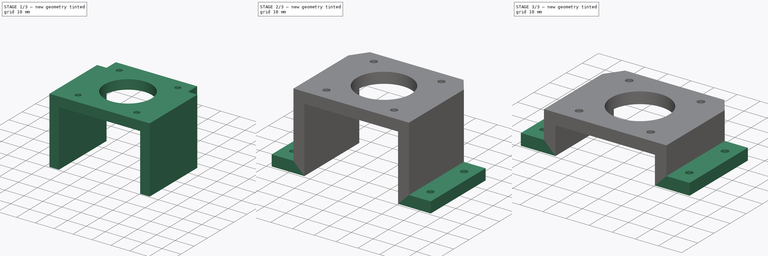
[diagram: build sequence overview — one tinted view per stage of 3, left to right]
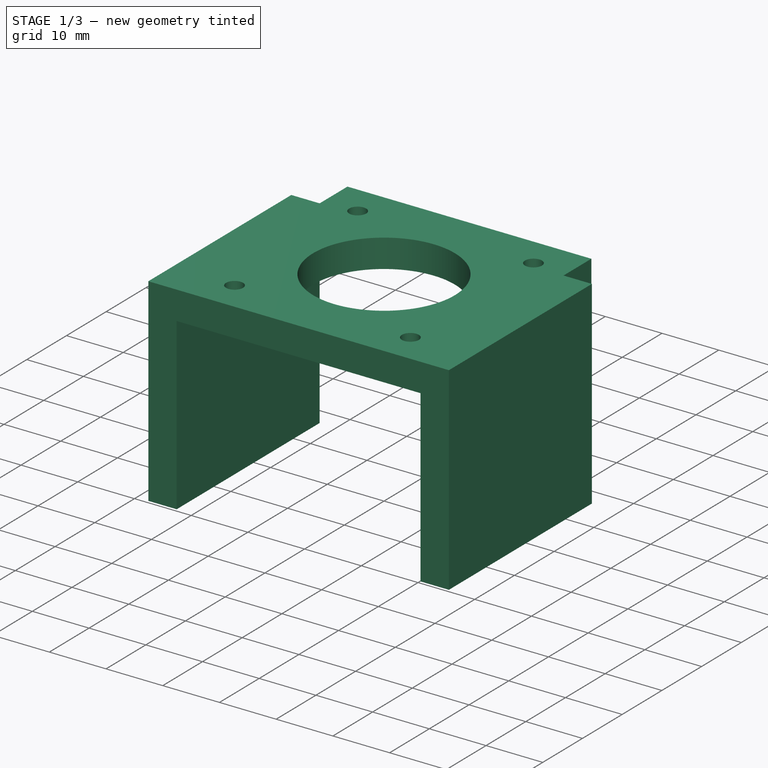
[diagram: stage 1 of 3 — iso view after this stage's code; geometry added in this stage tinted green]
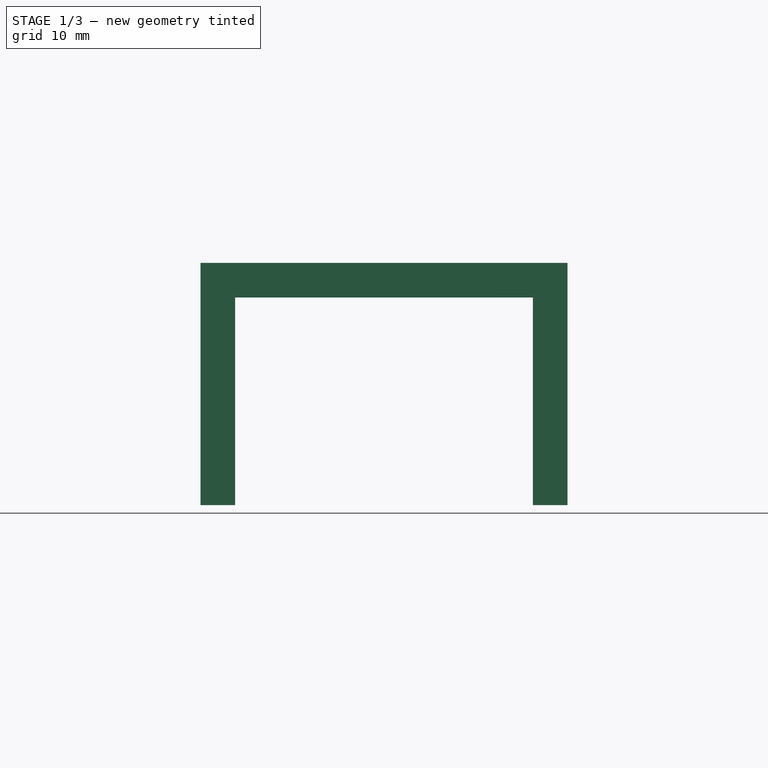
[diagram: stage 1 of 3 — front view after this stage's code; geometry added in this stage tinted green]
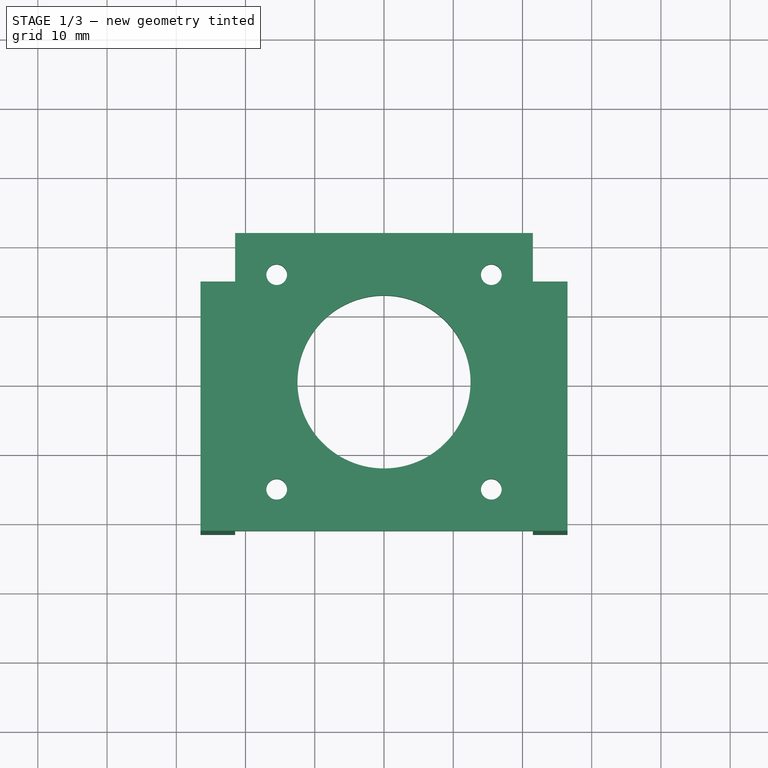
[diagram: stage 1 of 3 — top view after this stage's code; geometry added in this stage tinted green]
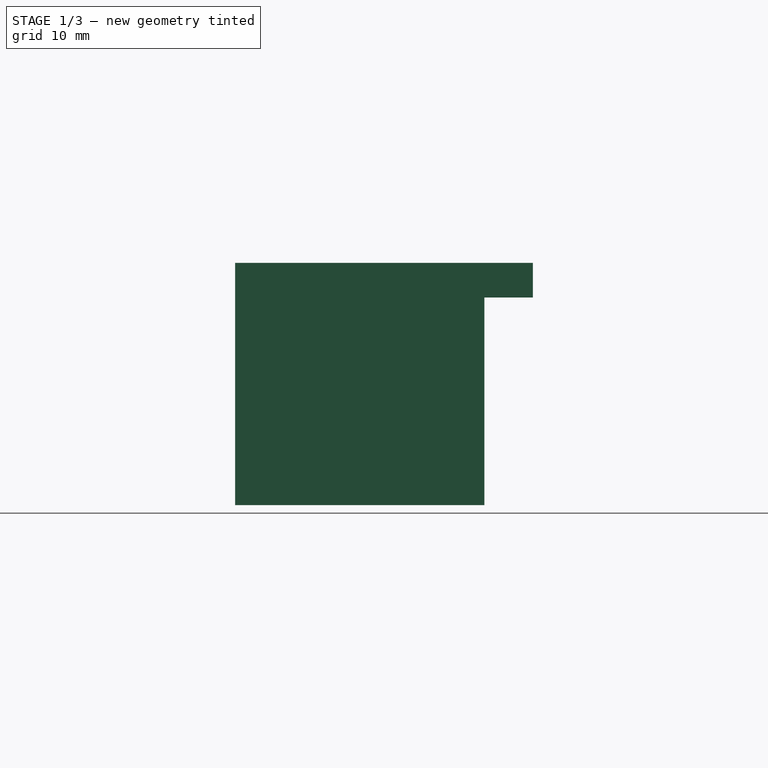
[diagram: stage 1 of 3 — right view after this stage's code; geometry added in this stage tinted green]
FCSTD DOCUMENT  (FreeCAD 1.0R39109 (Git))
Label: lock_bass_motor
License: All rights reserved
LicenseURL: https://en.wikipedia.org/wiki/All_rights_reserved
objects: PartDesign::Pad×4, Sketcher::SketchObject×3, PartDesign::Chamfer×1, PartDesign::Fillet×1, PartDesign::Pocket×1, PartDesign::Body×1
note: 28 computed .brp shape members not serialized (recipe doc carries the construction recipe); baked Part::Feature solids carry a one-line shape summary decoded from their .brp

FEATURE [Sketcher::SketchObject] Sketch
  ArcFitTolerance = 1e-06
  AttachmentSupport = -> [XY_Plane]
  FullyConstrained = true
  MakeInternals = false
  MapMode = 5
  sketch-geometry (13):
    g0: LineSegment StartX=-21.5 StartY=21.5 StartZ=0 EndX=-21.5 EndY=-21.5 EndZ=0
    g1: LineSegment StartX=-21.5 StartY=-21.5 StartZ=0 EndX=21.5 EndY=-21.5 EndZ=0
    g2: LineSegment StartX=21.5 StartY=-21.5 StartZ=0 EndX=21.5 EndY=21.5 EndZ=0
    g3: LineSegment StartX=21.5 StartY=21.5 StartZ=0 EndX=-21.5 EndY=21.5 EndZ=0
    g4: Circle CenterX=0 CenterY=0 CenterZ=0 NormalX=0 NormalY=0 NormalZ=1 AngleXU=0 Radius=12.5
    g5: LineSegment [constr] StartX=-15.5 StartY=15.5 StartZ=0 EndX=-15.5 EndY=-15.5 EndZ=0
    g6: LineSegment [constr] StartX=-15.5 StartY=-15.5 StartZ=0 EndX=15.5 EndY=-15.5 EndZ=0
    g7: LineSegment [constr] StartX=15.5 StartY=-15.5 StartZ=0 EndX=15.5 EndY=15.5 EndZ=0
    g8: LineSegment [constr] StartX=15.5 StartY=15.5 StartZ=0 EndX=-15.5 EndY=15.5 EndZ=0
    g9: Circle CenterX=-15.5 CenterY=15.5 CenterZ=0 NormalX=0 NormalY=0 NormalZ=1 AngleXU=0 Radius=1.5
    g10: Circle CenterX=15.5 CenterY=15.5 CenterZ=0 NormalX=0 NormalY=0 NormalZ=1 AngleXU=0 Radius=1.5
    g11: Circle CenterX=15.5 CenterY=-15.5 CenterZ=0 NormalX=0 NormalY=0 NormalZ=1 AngleXU=0 Radius=1.5
    g12: Circle CenterX=-15.5 CenterY=-15.5 CenterZ=0 NormalX=0 NormalY=0 NormalZ=1 AngleXU=0 Radius=1.5
  constraints (32):
    c: Coincident(g0,g1)
    c: Coincident(g1,g2)
    c: Coincident(g2,g3)
    c: Coincident(g3,g0)
    c: Vertical(g0)
    c: Vertical(g2)
    c: Horizontal(g1)
    c: Horizontal(g3)
    c: Coincident(g4,g-1)
    c: DistanceX(g1,g1) = 43
    c: Equal(g1,g2)
    c: DistanceX(g-1,g1) = 21.5
    c: DistanceY(g1,g-1) = 21.5
    c: Diameter(g4) = 25
    c: Coincident(g5,g6)
    c: Coincident(g6,g7)
    c: Coincident(g7,g8)
    c: Coincident(g8,g5)
    c: Vertical(g5)
    c: Horizontal(g8)
    c: Equal(g6,g7)
    c: Coincident(g9,g5)
    c: Coincident(g10,g7)
    c: Coincident(g11,g6)
    c: Coincident(g12,g5)
    c: Equal(g9,g10)
    c: Equal(g10,g11)
    c: Equal(g11,g12)
    c: Diameter(g9) = 3
    c: DistanceX(g8,g8) = 31
    c: Symmetric(g6,g7,g-1)
    c: Symmetric(g6,g5,g-2)
FEATURE [PartDesign::Pad] Pad
  Direction = (0,0,1)
  Length = 5
  Length2 = 10
  Profile = -> Sketch
  ReferenceAxis = -> Sketch [N_Axis]
  Refine = true
  Suppressed = false
  Type = 0
FEATURE [Sketcher::SketchObject] Sketch001
  ArcFitTolerance = 1e-06
  AttachmentSupport = -> [Pad]
  FullyConstrained = true
  MakeInternals = false
  MapMode = 5
  Placement = pos=(0,0,0) rot=(1,0,0;3.14159rad)
  sketch-geometry (8):
    g0: LineSegment StartX=21.5 StartY=21.5 StartZ=0 EndX=21.5 EndY=-14.5 EndZ=0
    g1: LineSegment StartX=21.5 StartY=-14.5 StartZ=0 EndX=26.5 EndY=-14.5 EndZ=0
    g2: LineSegment StartX=26.5 StartY=-14.5 StartZ=0 EndX=26.5 EndY=21.5 EndZ=0
    g3: LineSegment StartX=26.5 StartY=21.5 StartZ=0 EndX=21.5 EndY=21.5 EndZ=0
    g4: LineSegment StartX=-21.5 StartY=-14.5 StartZ=0 EndX=-21.5 EndY=21.5 EndZ=0
    g5: LineSegment StartX=-21.5 StartY=21.5 StartZ=0 EndX=-26.5 EndY=21.5 EndZ=0
    g6: LineSegment StartX=-26.5 StartY=21.5 StartZ=0 EndX=-26.5 EndY=-14.5 EndZ=0
    g7: LineSegment StartX=-26.5 StartY=-14.5 StartZ=0 EndX=-21.5 EndY=-14.5 EndZ=0
  constraints (24):
    c: Coincident(g0,g1)
    c: Coincident(g1,g2)
    c: Coincident(g2,g3)
    c: Coincident(g3,g0)
    c: Vertical(g0)
    c: Vertical(g2)
    c: Horizontal(g1)
    c: Horizontal(g3)
    c: Coincident(g4,g5)
    c: Coincident(g5,g6)
    c: Coincident(g6,g7)
    c: Coincident(g7,g4)
    c: Vertical(g4)
    c: Vertical(g6)
    c: Horizontal(g5)
    c: Horizontal(g7)
    c: Equal(g5,g3)
    c: Equal(g0,g4)
    c: DistanceY(g-1,g4) = 21.5
    c: DistanceX(g5,g5) = 5
    c: DistanceX(g4,g-1) = 21.5
    c: DistanceX(g-1,g0) = 21.5
    c: DistanceY(g-1,g0) = 21.5
    c: DistanceY(g0,g0) = 36
FEATURE [PartDesign::Pad] Pad001
  BaseFeature = -> Pad
  Direction = (0,0,-1)
  Length = 30
  Length2 = 5
  Profile = -> Sketch001
  ReferenceAxis = -> Sketch001 [N_Axis]
  Refine = true
  Suppressed = false
  Type = 4
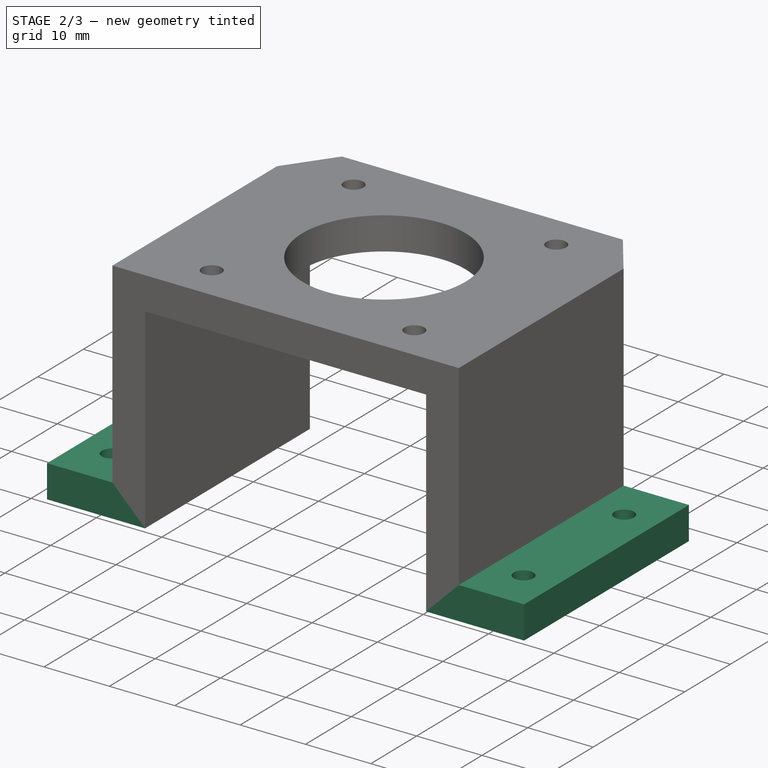
[diagram: stage 2 of 3 — iso view after this stage's code; geometry added in this stage tinted green]
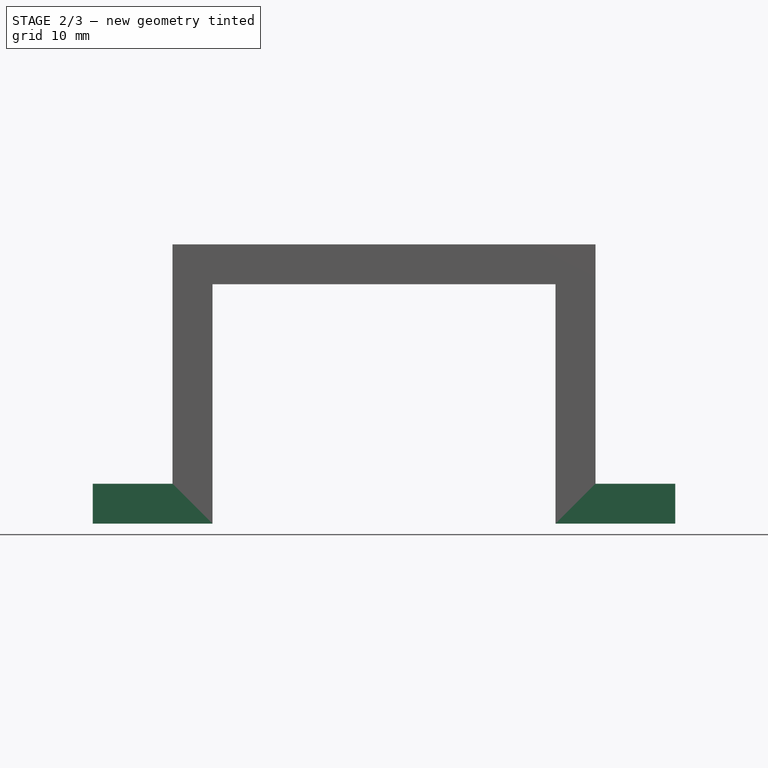
[diagram: stage 2 of 3 — front view after this stage's code; geometry added in this stage tinted green]
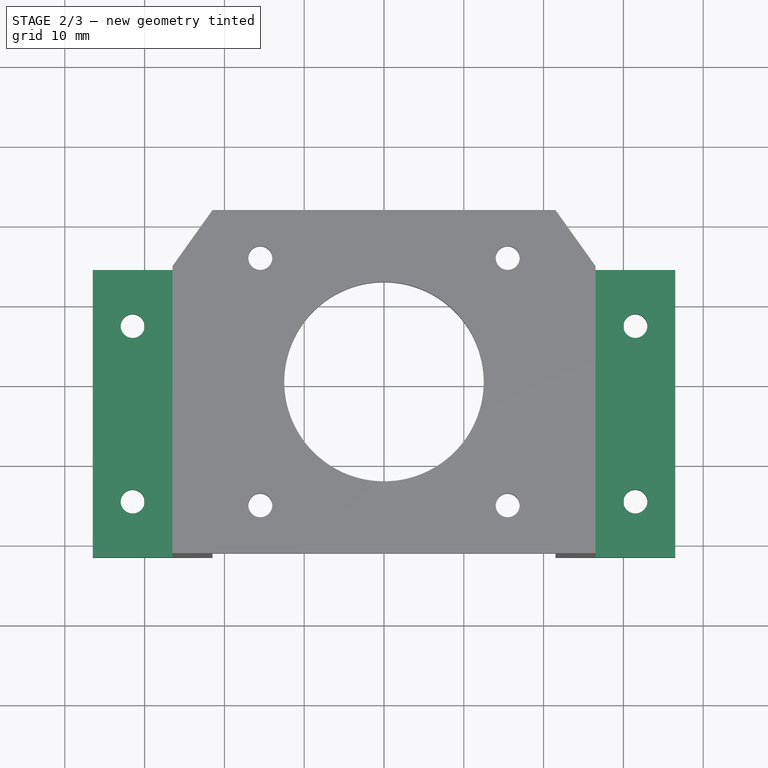
[diagram: stage 2 of 3 — top view after this stage's code; geometry added in this stage tinted green]
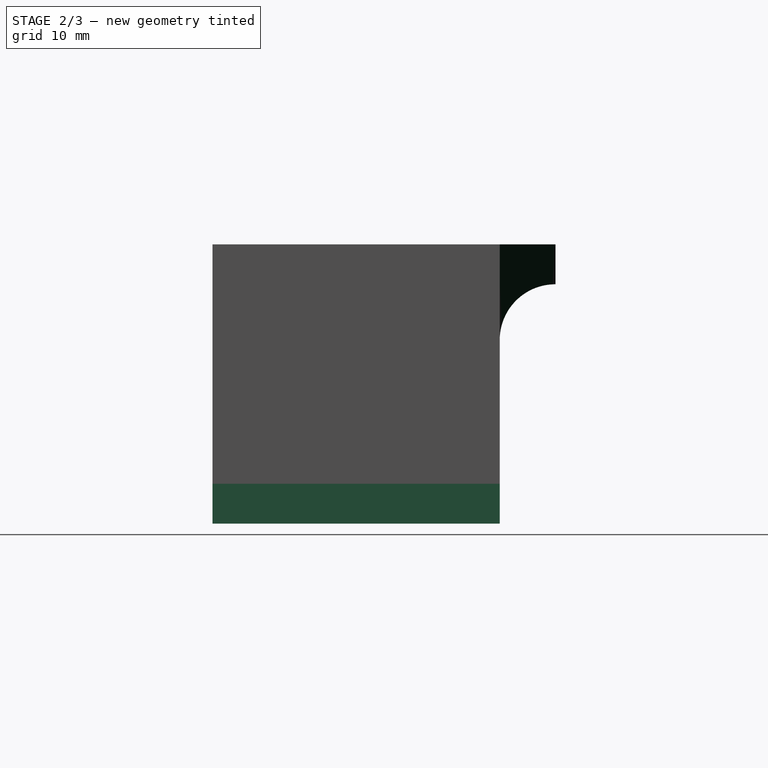
[diagram: stage 2 of 3 — right view after this stage's code; geometry added in this stage tinted green]
FEATURE [Sketcher::SketchObject] Sketch002
  ArcFitTolerance = 1e-06
  AttachmentSupport = -> [Pad001]
  FullyConstrained = true
  MakeInternals = false
  MapMode = 5
  Placement = pos=(0,0,-30) rot=(1,0,0;3.14159rad)
  sketch-geometry (12):
    g0: LineSegment StartX=-36.5 StartY=21.5 StartZ=0 EndX=-36.5 EndY=-14.5 EndZ=0
    g1: LineSegment StartX=-36.5 StartY=-14.5 StartZ=0 EndX=-21.5 EndY=-14.5 EndZ=0
    g2: LineSegment StartX=-21.5 StartY=-14.5 StartZ=0 EndX=-21.5 EndY=21.5 EndZ=0
    g3: LineSegment StartX=-21.5 StartY=21.5 StartZ=0 EndX=-36.5 EndY=21.5 EndZ=0
    g4: LineSegment StartX=21.5 StartY=21.5 StartZ=0 EndX=21.5 EndY=-14.5 EndZ=0
    g5: LineSegment StartX=21.5 StartY=-14.5 StartZ=0 EndX=36.5 EndY=-14.5 EndZ=0
    g6: LineSegment StartX=36.5 StartY=-14.5 StartZ=0 EndX=36.5 EndY=21.5 EndZ=0
    g7: LineSegment StartX=36.5 StartY=21.5 StartZ=0 EndX=21.5 EndY=21.5 EndZ=0
    g8: Circle CenterX=-31.5 CenterY=14.5 CenterZ=0 NormalX=0 NormalY=0 NormalZ=1 AngleXU=0 Radius=1.5
    g9: Circle CenterX=-31.5 CenterY=-7.5 CenterZ=0 NormalX=0 NormalY=0 NormalZ=1 AngleXU=0 Radius=1.5
    g10: Circle CenterX=31.5 CenterY=14.5 CenterZ=0 NormalX=0 NormalY=0 NormalZ=1 AngleXU=0 Radius=1.5
    g11: Circle CenterX=31.5 CenterY=-7.5 CenterZ=0 NormalX=0 NormalY=0 NormalZ=1 AngleXU=0 Radius=1.5
  constraints (36):
    c: Coincident(g0,g1)
    c: Coincident(g1,g2)
    c: Coincident(g2,g3)
    c: Coincident(g3,g0)
    c: Vertical(g0)
    c: Vertical(g2)
    c: Horizontal(g1)
    c: Horizontal(g3)
    c: Coincident(g4,g5)
    c: Coincident(g5,g6)
    c: Coincident(g6,g7)
    c: Coincident(g7,g4)
    c: Vertical(g4)
    c: Vertical(g6)
    c: Horizontal(g5)
    c: Horizontal(g7)
    c: DistanceX(g0,g6) = 73
    c: DistanceX(g0,g-1) = 36.5
    c: DistanceX(g2,g4) = 43
    c: DistanceY(g-1,g4) = 21.5
    c: DistanceY(g4,g4) = 36
    c: Horizontal(g1,g4)
    c: DistanceX(g-1,g4) = 21.5
    c: Horizontal(g2,g4)
    c: Horizontal(g8,g10)
    c: Horizontal(g11,g9)
    c: Vertical(g9,g8)
    c: Vertical(g10,g11)
    c: Equal(g8,g9)
    c: Equal(g11,g9)
    c: Equal(g11,g10)
    c: DistanceX(g11,g5) = 5
    c: DistanceX(g0,g8) = 5
    c: DistanceY(g9,g8) = 22
    c: DistanceY(g8,g0) = 7
    c: Diameter(g8) = 3
FEATURE [PartDesign::Pad] Pad002
  BaseFeature = -> Pad001
  Direction = (0,0,-1)
  Length = 5
  Length2 = 10
  Profile = -> Sketch002
  ReferenceAxis = -> Sketch002 [N_Axis]
  Refine = true
  Reversed = true
  Suppressed = false
  Type = 0
FEATURE [PartDesign::Chamfer] Chamfer
  Angle = 45
  Base = -> Pad002 [Edge2,Edge28]
  BaseFeature = -> Pad002
  ChamferType = 1
  FlipDirection = false
  Refine = true
  Size = 6.99
  Size2 = 4.99
  SupportTransform = false
  Suppressed = false
  UseAllEdges = false
FEATURE [PartDesign::Fillet] Fillet
  Base = -> Chamfer [Edge7,Edge12]
  BaseFeature = -> Chamfer
  Radius = 6.98
  Refine = true
  SupportTransform = false
  Suppressed = false
  UseAllEdges = false
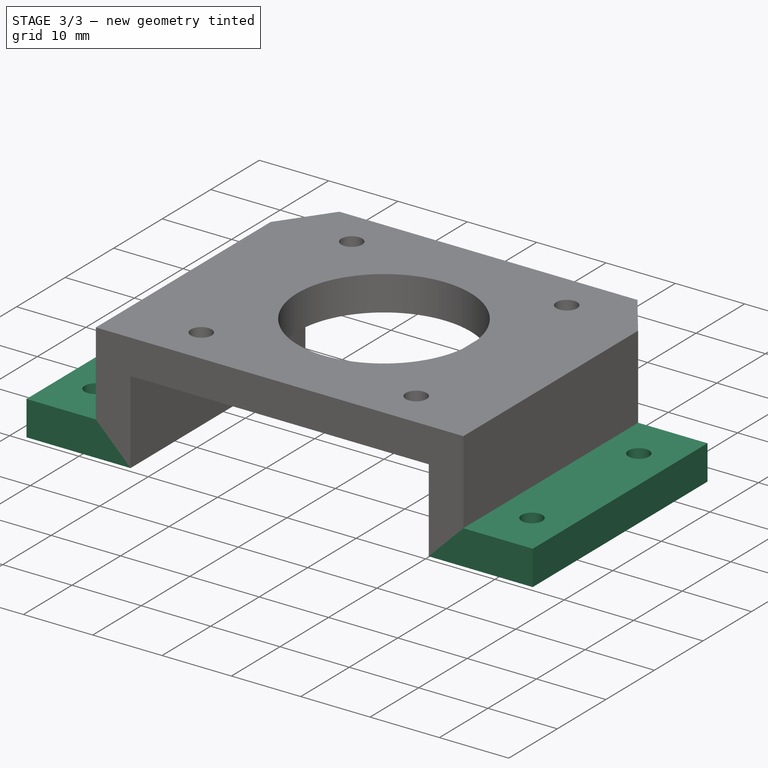
[diagram: stage 3 of 3 — iso view after this stage's code; geometry added in this stage tinted green]
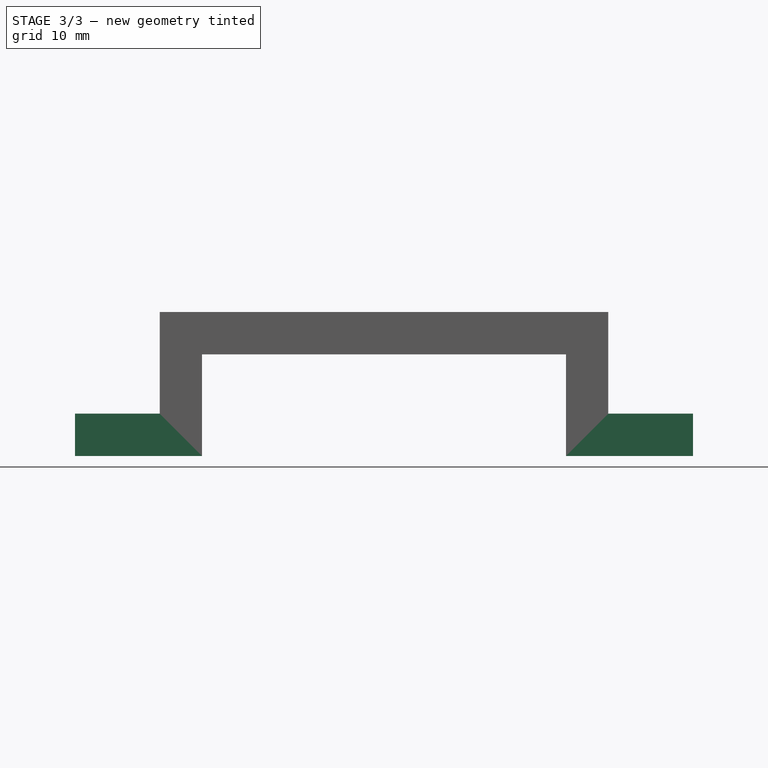
[diagram: stage 3 of 3 — front view after this stage's code; geometry added in this stage tinted green]
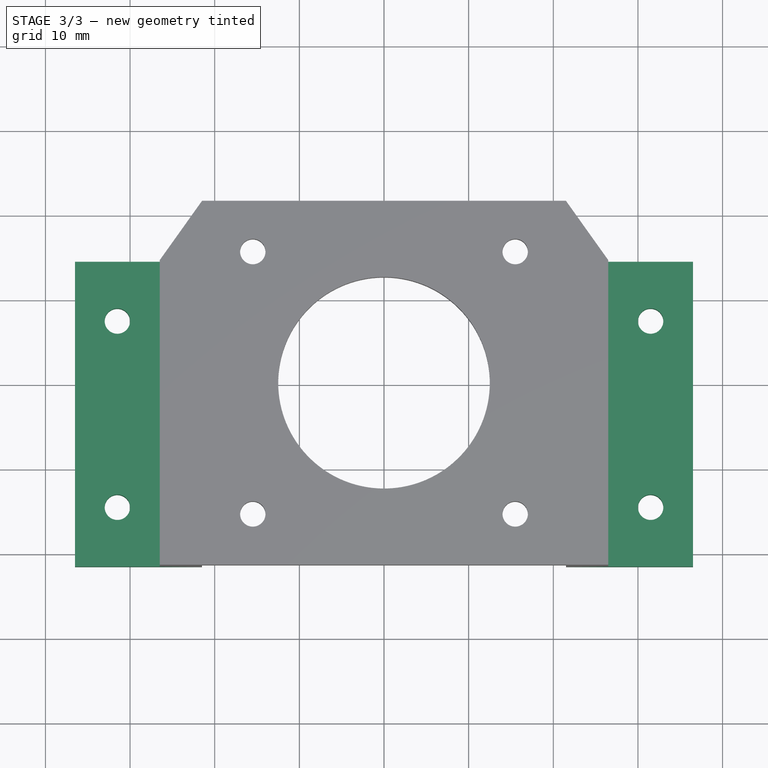
[diagram: stage 3 of 3 — top view after this stage's code; geometry added in this stage tinted green]
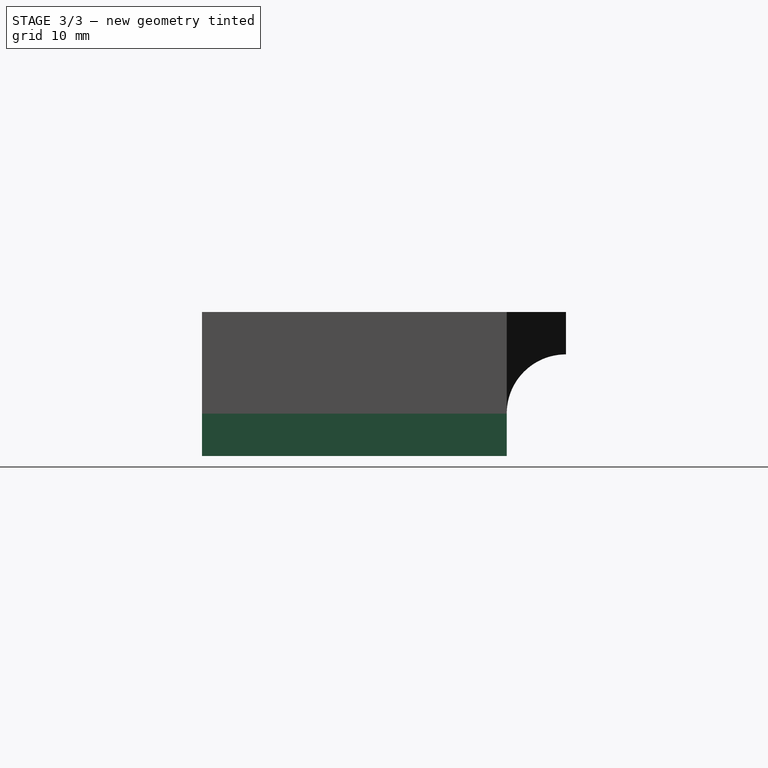
[diagram: stage 3 of 3 — right view after this stage's code; geometry added in this stage tinted green]
FEATURE [PartDesign::Pad] Pad003
  BaseFeature = -> Fillet
  Direction = (0,0,1)
  Length = 18
  Length2 = 10
  Profile = -> Fillet [Face22,Face25]
  Refine = true
  Suppressed = false
  Type = 0
FEATURE [PartDesign::Pocket] Pocket
  BaseFeature = -> Pad003
  Direction = (0,0,1)
  Length = 18
  Length2 = 5
  Profile = -> Pad003 [Face17,Face18]
  Refine = true
  Suppressed = false
  Type = 0
FEATURE [PartDesign::Body] Body
  AllowCompound = false
  Group = -> [Sketch,Pad,Sketch001,Pad001,Sketch002,Pad002,Chamfer,Fillet,Pad003,Pocket]
  Origin = -> Origin
  Tip = -> Pocket
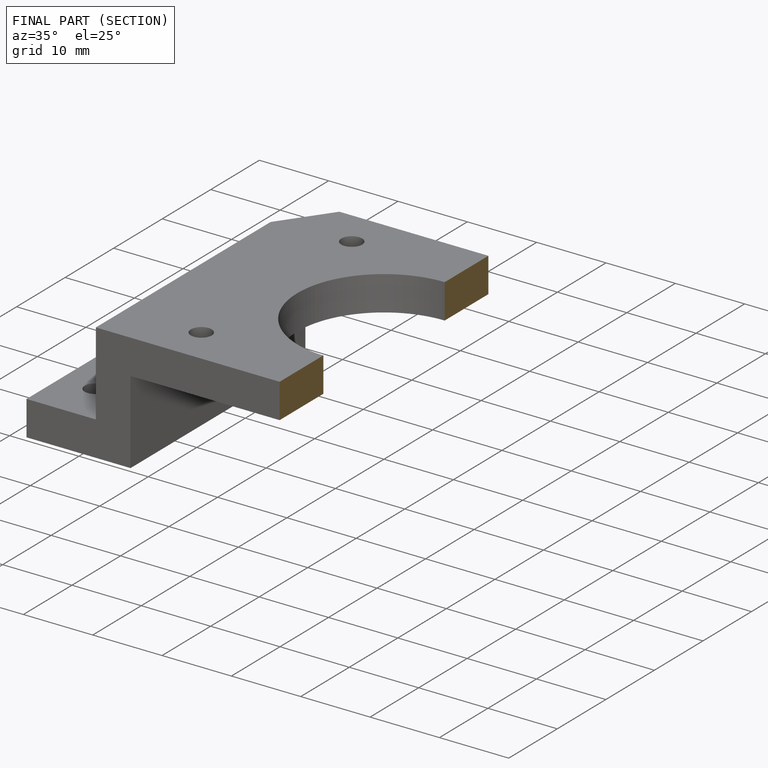
[diagram: finished part — half-section view (interior)]
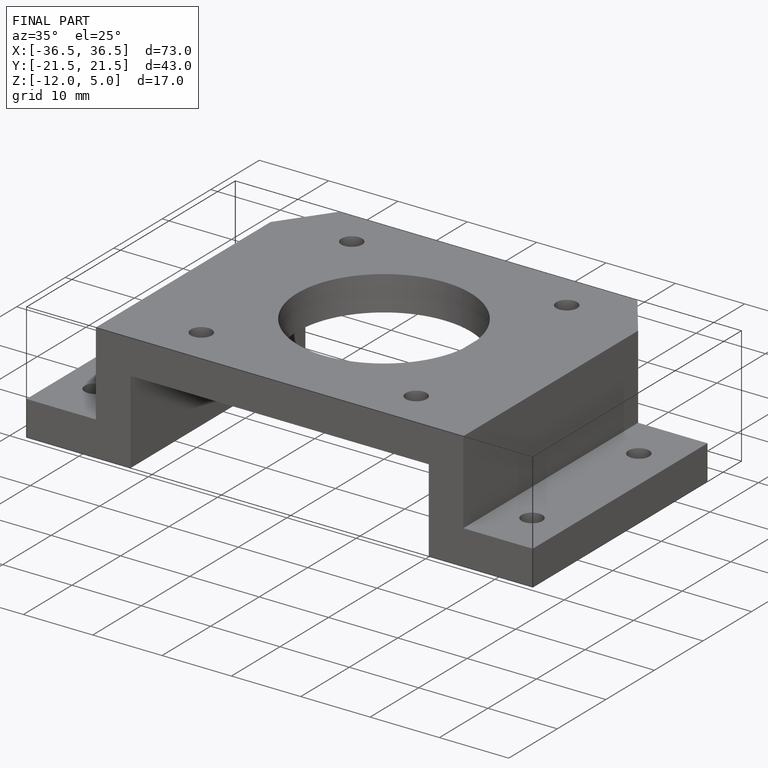
[diagram: finished part — iso view with bounding-box wireframe]
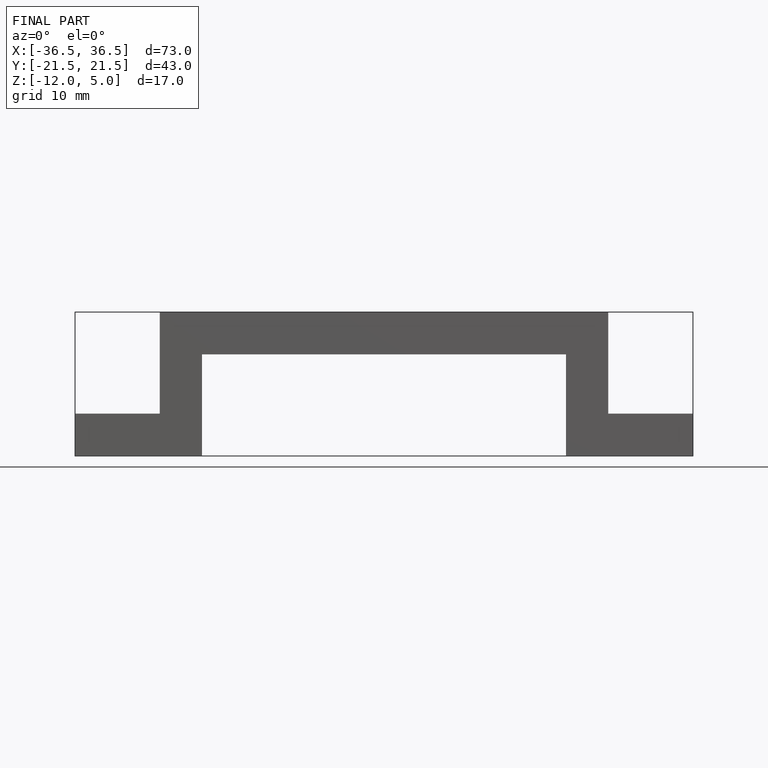
[diagram: finished part — front view with bounding-box wireframe]
